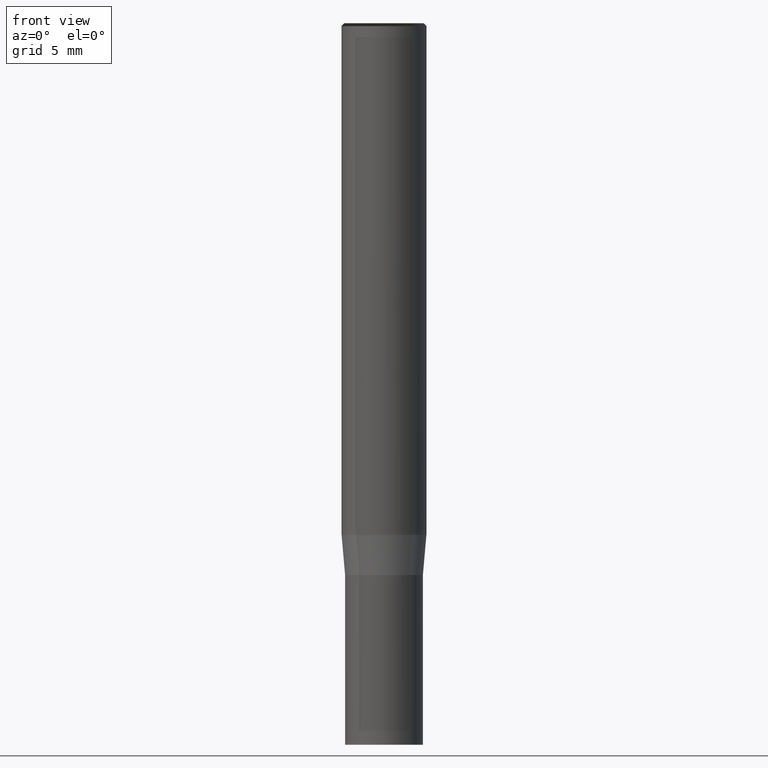
[diagram: clean part render]
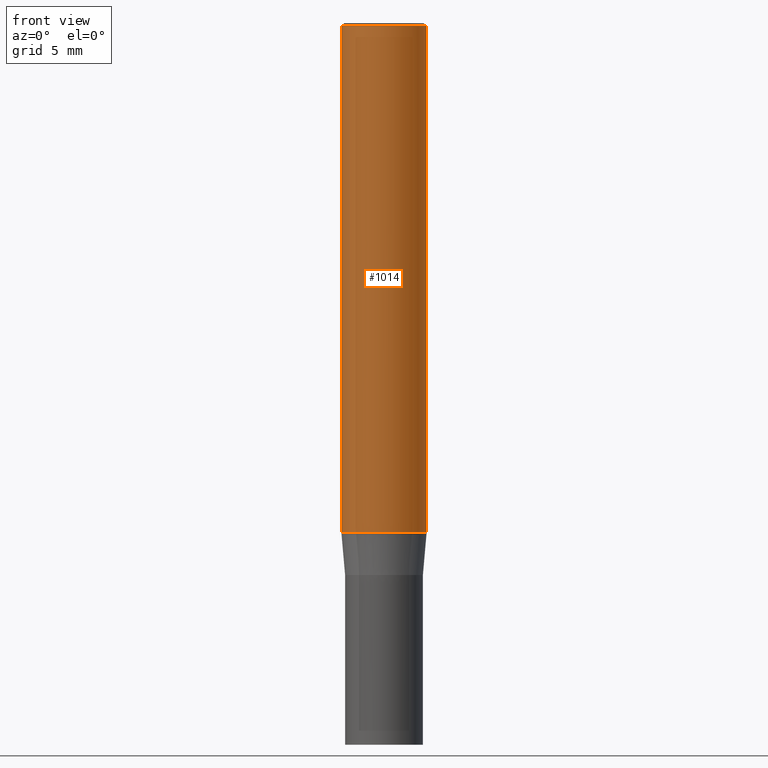
[diagram: same view with one face highlighted and labeled with its STEP entity id]
A machine part, front view. The second image highlights one B-rep face of the part: STEP entity #1014.
In plain terms, the highlighted face is a freeform B-spline surface patch.
Its self-contained STEP definition (entity closure, byte-faithful):
#685=CARTESIAN_POINT('',(3.0,0.0,0.0));
#689=CARTESIAN_POINT('',(-3.0,0.0,0.0));
#690=CARTESIAN_POINT('',(3.0,0.0,35.8));
#694=CARTESIAN_POINT('',(-3.0,0.0,35.8));
#704=CARTESIAN_POINT('',(-3.0,-3.0,0.0));
#705=CARTESIAN_POINT('',(0.0,-3.0,0.0));
#706=CARTESIAN_POINT('',(3.0,-3.0,0.0));
#707=CARTESIAN_POINT('',(-3.0,-3.0,35.8));
#708=CARTESIAN_POINT('',(0.0,-3.0,35.8));
#709=CARTESIAN_POINT('',(3.0,-3.0,35.8));
#995=(
BOUNDED_SURFACE()
B_SPLINE_SURFACE(1,2,(
(#689,#704,#705,#706,#685),
(#694,#707,#708,#709,#690)
), .UNSPECIFIED.,.F.,.F.,.F.)
B_SPLINE_SURFACE_WITH_KNOTS((2,2),(3,2,3),(
0.0,1.0),(
0.0,0.5,1.0), .UNSPECIFIED.)
GEOMETRIC_REPRESENTATION_ITEM()
RATIONAL_B_SPLINE_SURFACE(((1.0,0.707106781187,1.0,0.707106781187,1.0),
(1.0,0.707106781187,1.0,0.707106781187,1.0)
))
REPRESENTATION_ITEM('')
SURFACE()
);
#996=(
BOUNDED_CURVE()
B_SPLINE_CURVE(2,(#685,#706,#705,#704,#689),.UNSPECIFIED.,.F.,.F.)
B_SPLINE_CURVE_WITH_KNOTS((3,2,3),
(0.0,0.5,1.0),.UNSPECIFIED.)
CURVE()
GEOMETRIC_REPRESENTATION_ITEM()
RATIONAL_B_SPLINE_CURVE((1.0,0.707106781187,1.0,0.707106781187,1.0))
REPRESENTATION_ITEM('')
);
#997=(
BOUNDED_CURVE()
B_SPLINE_CURVE(1,(#689,#694),.UNSPECIFIED.,.F.,.F.)
B_SPLINE_CURVE_WITH_KNOTS((2,2),
(0.0,1.0),.UNSPECIFIED.)
CURVE()
GEOMETRIC_REPRESENTATION_ITEM()
RATIONAL_B_SPLINE_CURVE((1.0,1.0))
REPRESENTATION_ITEM('')
);
#998=(
BOUNDED_CURVE()
B_SPLINE_CURVE(2,(#694,#707,#708,#709,#690),.UNSPECIFIED.,.F.,.F.)
B_SPLINE_CURVE_WITH_KNOTS((3,2,3),
(0.0,0.5,1.0),.UNSPECIFIED.)
CURVE()
GEOMETRIC_REPRESENTATION_ITEM()
RATIONAL_B_SPLINE_CURVE((1.0,0.707106781187,1.0,0.707106781187,1.0))
REPRESENTATION_ITEM('')
);
#999=(
BOUNDED_CURVE()
B_SPLINE_CURVE(1,(#690,#685),.UNSPECIFIED.,.F.,.F.)
B_SPLINE_CURVE_WITH_KNOTS((2,2),
(0.0,1.0),.UNSPECIFIED.)
CURVE()
GEOMETRIC_REPRESENTATION_ITEM()
RATIONAL_B_SPLINE_CURVE((1.0,1.0))
REPRESENTATION_ITEM('')
);
#1000=VERTEX_POINT('',#685);
#1001=VERTEX_POINT('',#689);
#1002=VERTEX_POINT('',#690);
#1003=VERTEX_POINT('',#694);
#1004=EDGE_CURVE('',#1000,#1001,#996,.T.);
#1005=EDGE_CURVE('',#1001,#1003,#997,.T.);
#1006=EDGE_CURVE('',#1003,#1002,#998,.T.);
#1007=EDGE_CURVE('',#1002,#1000,#999,.T.);
#1008=ORIENTED_EDGE('',*,*,#1004,.T.);
#1009=ORIENTED_EDGE('',*,*,#1005,.T.);
#1010=ORIENTED_EDGE('',*,*,#1006,.T.);
#1011=ORIENTED_EDGE('',*,*,#1007,.T.);
#1012=EDGE_LOOP('',(#1008,#1009,#1010,#1011));
#1013=FACE_OUTER_BOUND('',#1012,.T.);
#1014=ADVANCED_FACE('',(#1013),#995,.T.);